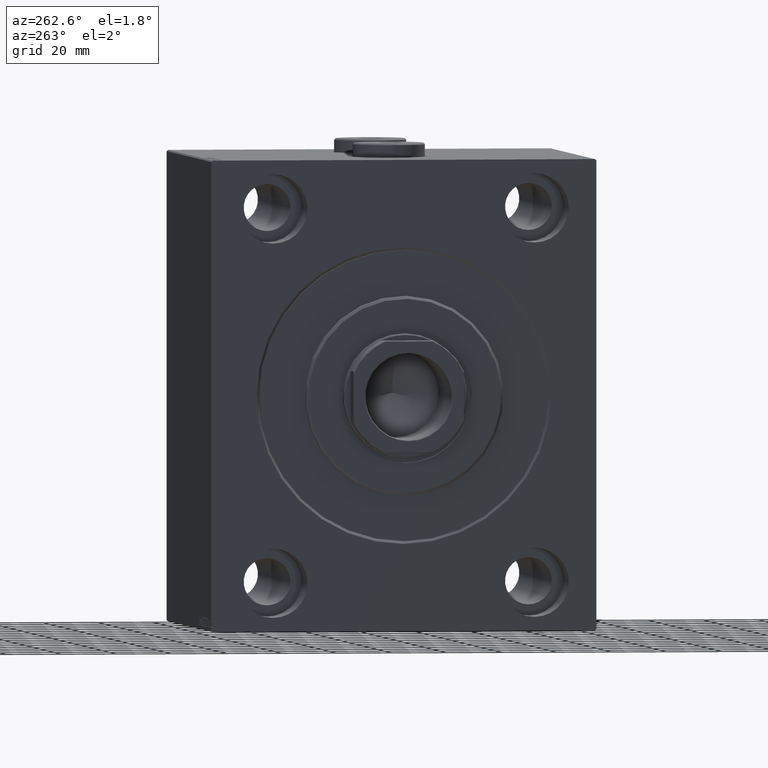
[diagram: clean part render]
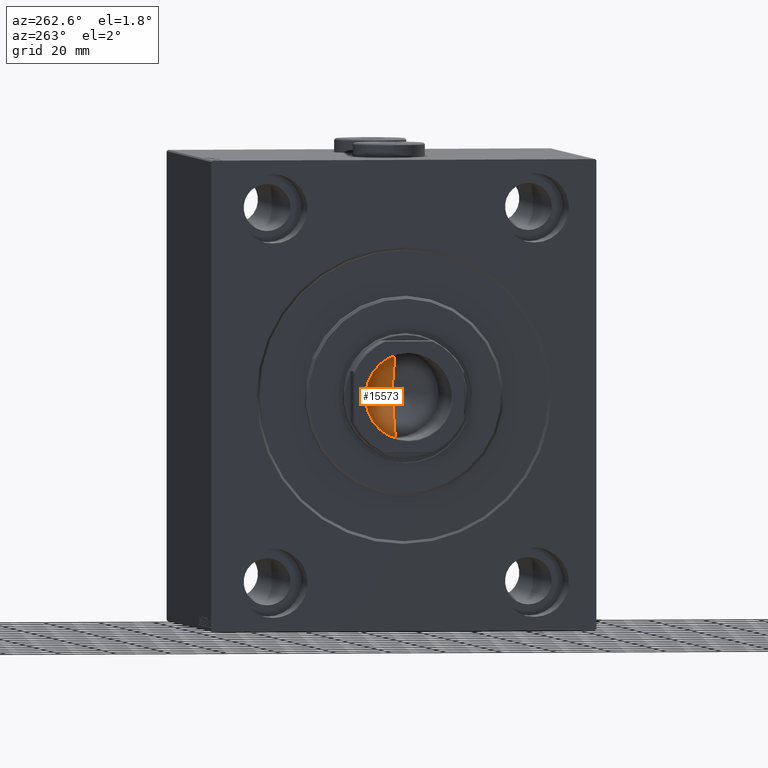
[diagram: same view with one face highlighted and labeled with its STEP entity id]
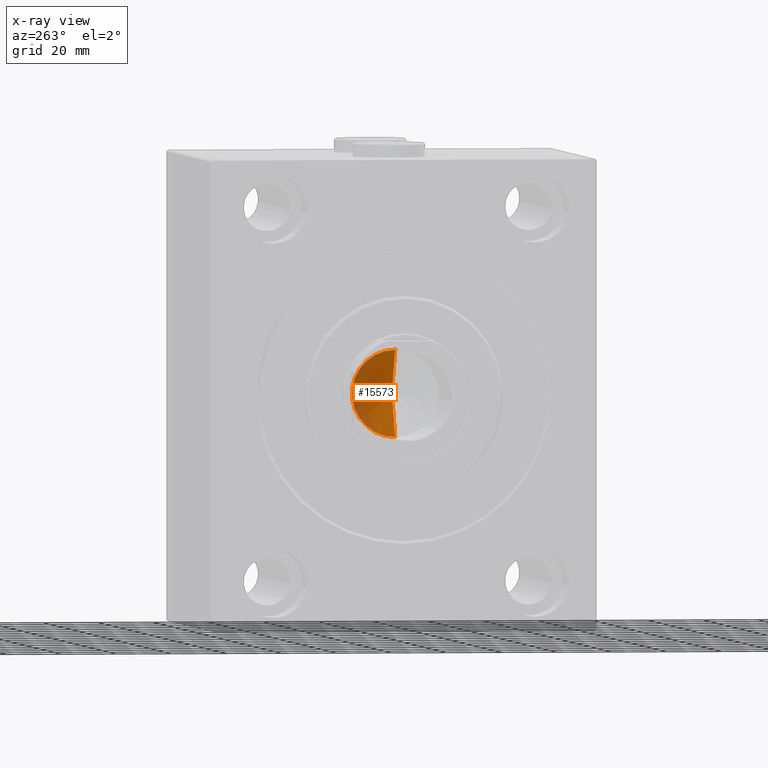
[diagram: x-ray of the same camera — body ghosted, the highlighted face saturated]
A machine part, auxiliary view. The second image highlights one B-rep face of the part: STEP entity #15573.
The next image is the same camera in x-ray: the body ghosted, the highlighted face saturated — about 41% of this face is hidden behind the body in this view.
In plain terms, the highlighted conical surface has half-angle 59 deg.
Its self-contained STEP definition (entity closure, byte-faithful):
#651 = ORIENTED_EDGE ( 'NONE', *, *, #33247, .T. ) ;
#1318 = EDGE_LOOP ( 'NONE', ( #5682, #43636, #651 ) ) ;
#2452 = CARTESIAN_POINT ( 'NONE',  ( -15.74999999999999289, 1.928818708657080556E-15, 26.99999999999998934 ) ) ;
#4051 = AXIS2_PLACEMENT_3D ( 'NONE', #41794, #24900, #20819 ) ;
#5682 = ORIENTED_EDGE ( 'NONE', *, *, #27042, .F. ) ;
#5836 = DIRECTION ( 'NONE',  ( 0.8571673007021118895, 0.000000000000000000, 0.5150380749100549327 ) ) ;
#13452 = CARTESIAN_POINT ( 'NONE',  ( 15.74999999999999289, 0.000000000000000000, 26.99999999999998934 ) ) ;
#15212 = CONICAL_SURFACE ( 'NONE', #42898, 15.74999999999999289, 1.029744258676653645 ) ;
#15573 = ADVANCED_FACE ( 'NONE', ( #24249 ), #15212, .F. ) ;
#16318 = VERTEX_POINT ( 'NONE', #21076 ) ;
#18515 = VERTEX_POINT ( 'NONE', #21957 ) ;
#19550 = LINE ( 'NONE', #20445, #42097 ) ;
#20445 = CARTESIAN_POINT ( 'NONE',  ( 15.74999999999999289, 0.000000000000000000, 26.99999999999998934 ) ) ;
#20819 = DIRECTION ( 'NONE',  ( 1.000000000000000000, 0.000000000000000000, 0.000000000000000000 ) ) ;
#21076 = CARTESIAN_POINT ( 'NONE',  ( -15.74999999999999289, 1.928818708657080556E-15, 26.99999999999998934 ) ) ;
#21957 = CARTESIAN_POINT ( 'NONE',  ( -1.199718644317817648E-14, 0.000000000000000000, 17.53644525031590362 ) ) ;
#24249 = FACE_OUTER_BOUND ( 'NONE', #1318, .T. ) ;
#24900 = DIRECTION ( 'NONE',  ( -0.000000000000000000, -0.000000000000000000, 1.000000000000000000 ) ) ;
#26623 = LINE ( 'NONE', #2452, #35949 ) ;
#27042 = EDGE_CURVE ( 'NONE', #18515, #16318, #26623, .T. ) ;
#27438 = DIRECTION ( 'NONE',  ( -0.000000000000000000, -0.000000000000000000, 1.000000000000000000 ) ) ;
#27685 = VERTEX_POINT ( 'NONE', #13452 ) ;
#33247 = EDGE_CURVE ( 'NONE', #27685, #16318, #43403, .T. ) ;
#33475 = DIRECTION ( 'NONE',  ( -0.8571673007021118895, 1.049727191138618079E-16, 0.5150380749100549327 ) ) ;
#34310 = CARTESIAN_POINT ( 'NONE',  ( 0.000000000000000000, 0.000000000000000000, 26.99999999999998934 ) ) ;
#35949 = VECTOR ( 'NONE', #33475, 1000.000000000000000 ) ;
#41368 = DIRECTION ( 'NONE',  ( 1.000000000000000000, 0.000000000000000000, 0.000000000000000000 ) ) ;
#41794 = CARTESIAN_POINT ( 'NONE',  ( 0.000000000000000000, 0.000000000000000000, 26.99999999999998934 ) ) ;
#42097 = VECTOR ( 'NONE', #5836, 1000.000000000000000 ) ;
#42579 = EDGE_CURVE ( 'NONE', #18515, #27685, #19550, .T. ) ;
#42898 = AXIS2_PLACEMENT_3D ( 'NONE', #34310, #27438, #41368 ) ;
#43403 = CIRCLE ( 'NONE', #4051, 15.74999999999999289 ) ;
#43636 = ORIENTED_EDGE ( 'NONE', *, *, #42579, .T. ) ;